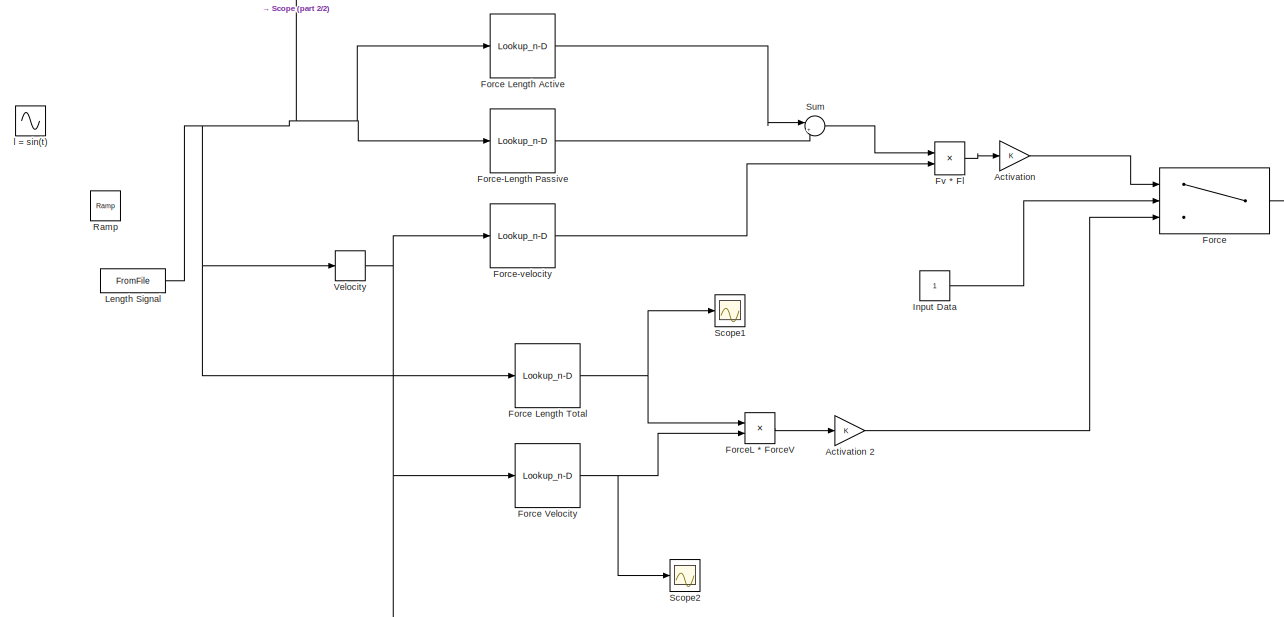
[diagram: root canvas - part 1/2, most of the canvas]
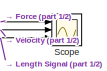
[diagram: root canvas - part 2/2, top right region]
MODEL slx_9e7571fe6eda
KIND model
CONFIG AbsTol = auto
CONFIG EnableMultiTasking = off
CONFIG FixedStep = 0.01
CONFIG MaxStep = auto
CONFIG MinStep = auto
CONFIG RelTol = 1e-3
CONFIG SampleTimeConstraint = Unconstrained
CONFIG SolverName = FixedStepAuto
CONFIG StartTime = 0.0
CONFIG StopTime = 10.0
BLOCK [Gain] Activation
BLOCK [Gain] Activation 2
BLOCK [Switch] Force
  Criteria = u2 > Threshold
  InputSameDT = off
  SaturateOnIntegerOverflow = off
BLOCK [Lookup_n-D] Force Length Active
  BreakpointsForDimension1 = flaCurve(:,1)
  InputPortMap = u0
  InternalRulePriority = Speed
  InterpMethod = Cubic spline
  NumberOfTableDimensions = 1
  Ports = [1, 1]
  RndMeth = Simplest
  Table = flaCurve(:,2)
BLOCK [Lookup_n-D] Force Length Total
  BreakpointsForDimension1 = fLenCurve(:,1)
  InputPortMap = u0
  InternalRulePriority = Speed
  InterpMethod = Akima spline
  NumberOfTableDimensions = 1
  Ports = [1, 1]
  RndMeth = Simplest
  Table = fLenCurve(:,2)
BLOCK [Lookup_n-D] Force Velocity 
  BreakpointsForDimension1 = fvCurve2(:,1)
  InputPortMap = u0
  InternalRulePriority = Speed
  InterpMethod = Cubic spline
  NumberOfTableDimensions = 1
  Ports = [1, 1]
  RndMeth = Simplest
  Table = fvCurve2(:,2)
BLOCK [Lookup_n-D] Force-Length Passive
  BreakpointsForDimension1 = flpCurve(:,1)
  InputPortMap = u0
  InternalRulePriority = Speed
  InterpMethod = Cubic spline
  NumberOfTableDimensions = 1
  Ports = [1, 1]
  RndMeth = Simplest
  Table = flpCurve(:,2)
BLOCK [Lookup_n-D] Force-velocity 
  BreakpointsForDimension1 = fvCurve(:,1)
  InputPortMap = u0
  InternalRulePriority = Speed
  InterpMethod = Cubic spline
  NumberOfTableDimensions = 1
  Ports = [1, 1]
  RndMeth = Simplest
  Table = fvCurve(:,2)
BLOCK [Product] ForceL * ForceV
  Ports = [2, 1]
BLOCK [Product] Fv * Fl
  Ports = [2, 1]
BLOCK [Constant] Input Data
BLOCK [FromFile] Length Signal
  FileName = triangle.mat
  SampleTime = 0
BLOCK [Reference] Ramp  REF=simulink/Sources/Ramp
  Ports = [0, 1]
  SourceBlock = simulink/Sources/Ramp
  SourceProductBaseCode = SL
  SourceType = Ramp
BLOCK [Scope] Scope
  Floating = off
  NumInputPorts = 3
  Ports = [3]
  ScopeSpecificationString = Simulink.scopes.TimeScopeBlockCfg('CurrentConfiguration', extmgr.ConfigurationSet(extmgr.Configuration('Core','General UI',true),extmgr.Configuration('Core','Source UI',true),extmgr.Configuration('Sources','WiredSimulink',true),extmgr.Configuration('Visuals','Time Domain',true,'SerializedDisplays',{struct('MinYLimReal','-2.7277','MaxYLimReal','4.32128','YLabelReal','','MinYLimMag','0.00000','MaxYL...<+1467ch>
BLOCK [Scope] Scope1
  Floating = off
  NumInputPorts = 1
  Ports = [1]
  ScopeSpecificationString = Simulink.scopes.TimeScopeBlockCfg('CurrentConfiguration', extmgr.ConfigurationSet(extmgr.Configuration('Core','General UI',true),extmgr.Configuration('Core','Source UI',true),extmgr.Configuration('Sources','WiredSimulink',true,'DataLoggingVariableName','ScopeData1'),extmgr.Configuration('Visuals','Time Domain',true,'SerializedDisplays',{struct('MinYLimReal','-1.62856','MaxYLimReal','1.29357','YLab...<+1377ch>
BLOCK [Scope] Scope2
  Floating = off
  NumInputPorts = 1
  Ports = [1]
  ScopeSpecificationString = Simulink.scopes.TimeScopeBlockCfg('CurrentConfiguration', extmgr.ConfigurationSet(extmgr.Configuration('Core','General UI',true),extmgr.Configuration('Core','Source UI',true),extmgr.Configuration('Sources','WiredSimulink',true,'DataLoggingVariableName','ScopeData2'),extmgr.Configuration('Visuals','Time Domain',true,'SerializedDisplays',{struct('MinYLimReal','-0.1701','MaxYLimReal','1.22005','YLabe...<+1372ch>
BLOCK [Sum] Sum
  Inputs = |++
  Ports = [2, 1]
BLOCK [Derivative] Velocity
BLOCK [Sin] l = sin(t)
  Ports = [0, 1]
  SampleTime = 0
LINE Activation 2:1 -> Force:3
LINE Activation:1 -> Force:1
LINE Force Length Active:1 -> Sum:1
NET Force Length Total:1 -> ForceL * ForceV:1, Scope1:1
NET Force Velocity :1 -> ForceL * ForceV:2, Scope2:1
LINE Force-Length Passive:1 -> Sum:2
LINE Force-velocity :1 -> Fv * Fl:2
LINE Force:1 -> Scope:1
LINE ForceL * ForceV:1 -> Activation 2:1
LINE Fv * Fl:1 -> Activation:1
LINE Input Data:1 -> Force:2
NET Length Signal:1 -> Force Length Active:1, Force Length Total:1, Force-Length Passive:1, Scope:3, Velocity:1
LINE Sum:1 -> Fv * Fl:1
NET Velocity:1 -> Force Velocity :1, Force-velocity :1, Scope:2
note: NET lines group one-source signal fan-out (src -> all destinations, sorted); 1:1 wires keep LINE
